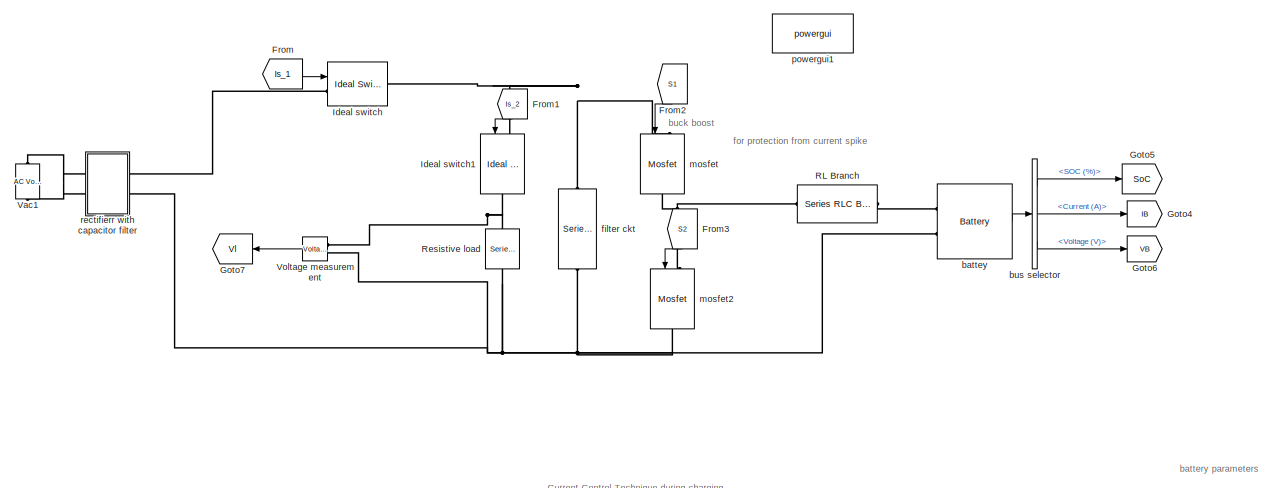
[diagram: root canvas - part 1/2, full width, top band]
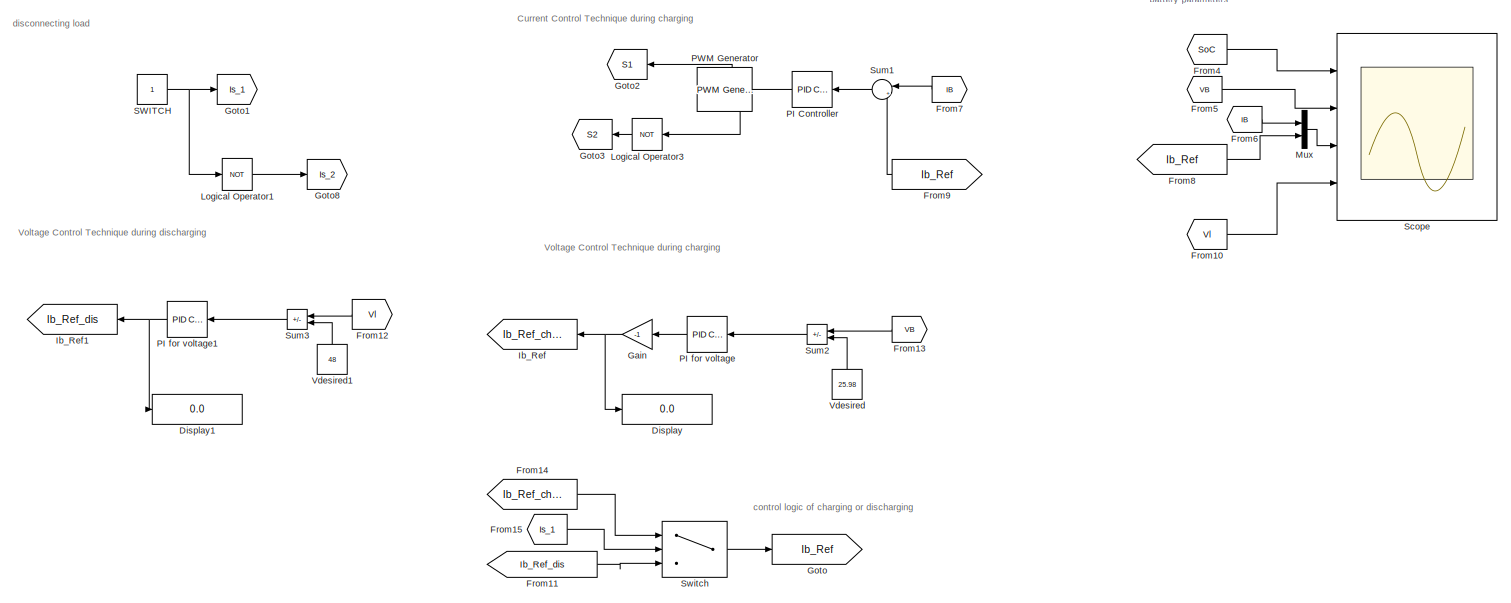
[diagram: root canvas - part 2/2, full width, bottom band]
MODEL slx_25568079fb22
KIND model
CONFIG AbsTol = auto
CONFIG EnableMultiTasking = off
CONFIG FixedStep = 5e-6
CONFIG MaxStep = auto
CONFIG MinStep = auto
CONFIG RelTol = 1e-3
CONFIG SampleTimeConstraint = Unconstrained
CONFIG SolverName = VariableStepAuto
CONFIG StartTime = 0.0
CONFIG StopTime = 20
BLOCK [Display] Display
  Decimation = 1
  Ports = [1]
BLOCK [Display] Display1
  Decimation = 1
  Ports = [1]
BLOCK [From] From
  GotoTag = Is_1
BLOCK [From] From1
  GotoTag = Is_2
  NameLocation = left
BLOCK [From] From10
  GotoTag = Vl
  NameLocation = top
BLOCK [From] From11
  GotoTag = Ib_Ref_dis
BLOCK [From] From12
  GotoTag = Vl
BLOCK [From] From13
  GotoTag = VB
  NameLocation = top
BLOCK [From] From14
  GotoTag = Ib_Ref_charg
BLOCK [From] From15
  GotoTag = Is_1
BLOCK [From] From2
  GotoTag = S1
  NameLocation = right
BLOCK [From] From3
  GotoTag = S2
  NameLocation = right
BLOCK [From] From4
  GotoTag = SoC
BLOCK [From] From5
  GotoTag = VB
BLOCK [From] From6
  GotoTag = IB
BLOCK [From] From7
  GotoTag = IB
  NameLocation = top
BLOCK [From] From8
  GotoTag = Ib_Ref
BLOCK [From] From9
  GotoTag = Ib_Ref
BLOCK [Gain] Gain
  Gain = -1
  NameLocation = top
BLOCK [Goto] Goto
  GotoTag = Ib_Ref
BLOCK [Goto] Goto1
  GotoTag = Is_1
BLOCK [Goto] Goto2
  GotoTag = S1
  NameLocation = top
BLOCK [Goto] Goto3
  GotoTag = S2
  NameLocation = top
BLOCK [Goto] Goto4
  GotoTag = IB
BLOCK [Goto] Goto5
  GotoTag = SoC
BLOCK [Goto] Goto6
  GotoTag = VB
BLOCK [Goto] Goto7
  GotoTag = Vl
  NameLocation = top
BLOCK [Goto] Goto8
  GotoTag = Is_2
BLOCK [Goto] Ib_Ref
  GotoTag = Ib_Ref_charg
  NameLocation = top
BLOCK [Goto] Ib_Ref1
  GotoTag = Ib_Ref_dis
  NameLocation = top
BLOCK [Reference] Ideal switch  REF=spsIdealSwitchLib/Ideal Switch
  Ports = [1, 0, 0, 0, 0, 1, 1]
  SourceBlock = spsIdealSwitchLib/Ideal Switch
  SourceProductBaseCode = PS
  SourceType = Ideal Switch
BLOCK [Reference] Ideal switch1  REF=spsIdealSwitchLib/Ideal Switch
  NameLocation = left
  Ports = [1, 0, 0, 0, 0, 1, 1]
  SourceBlock = spsIdealSwitchLib/Ideal Switch
  SourceProductBaseCode = PS
  SourceType = Ideal Switch
BLOCK [Logic] Logical Operator1
  AllPortsSameDT = off
  Operator = NOT
  OutDataTypeStr = boolean
  Ports = [1, 1]
BLOCK [Logic] Logical Operator3
  AllPortsSameDT = off
  NameLocation = top
  Operator = NOT
  OutDataTypeStr = boolean
  Ports = [1, 1]
BLOCK [Mux] Mux
  DisplayOption = bar
  Inputs = 2
  Ports = [2, 1]
BLOCK [Reference] PI Controller  REF=slpidlib/PID Controller
  NameLocation = top
  Ports = [1, 1]
  SourceBlock = slpidlib/PID Controller
  SourceProductBaseCode = SL
  SourceType = PID 1dof
BLOCK [Reference] PI for voltage  REF=slpidlib/PID Controller
  NameLocation = top
  Ports = [1, 1]
  SourceBlock = slpidlib/PID Controller
  SourceProductBaseCode = SL
  SourceType = PID 1dof
BLOCK [Reference] PI for voltage1  REF=slpidlib/PID Controller
  NameLocation = top
  Ports = [1, 1]
  SourceBlock = slpidlib/PID Controller
  SourceProductBaseCode = SL
  SourceType = PID 1dof
BLOCK [Reference] PWM Generator  REF=spsPWMGeneratorDCDCLib/PWM Generator
(DC-DC)
  NameLocation = top
  Ports = [1, 1]
  SourceBlock = spsPWMGeneratorDCDCLib/PWM Generator\n(DC-DC)
  SourceProductBaseCode = PS
  SourceType = PWM Generator (DC-DC)
BLOCK [Reference] RL Branch  REF=spsSeriesRLCBranchLib/Series RLC Branch
  Ports = [0, 0, 0, 0, 0, 1, 1]
  SourceBlock = spsSeriesRLCBranchLib/Series RLC Branch
  SourceProductBaseCode = PS
  SourceType = Series RLC Branch
BLOCK [Reference] Resistive load  REF=spsSeriesRLCBranchLib/Series RLC Branch
  NameLocation = left
  Ports = [0, 0, 0, 0, 0, 1, 1]
  SourceBlock = spsSeriesRLCBranchLib/Series RLC Branch
  SourceProductBaseCode = PS
  SourceType = Series RLC Branch
BLOCK [Constant] SWITCH
BLOCK [Scope] Scope
  Floating = off
  NumInputPorts = 4
  Ports = [4]
  ScopeSpecificationString = Simulink.scopes.TimeScopeBlockCfg('CurrentConfiguration', extmgr.ConfigurationSet(extmgr.Configuration('Core','General UI',true,'DisplayFullSourceName',true),extmgr.Configuration('Core','Source UI',true),extmgr.Configuration('Sources','WiredSimulink',true,'DataLoggingVariableName','ScopeData1'),extmgr.Configuration('Visuals','Time Domain',true,'SerializedDisplays',{struct('MinYLimReal','79.99244',...<+3842ch>
BLOCK [Sum] Sum1
  Inputs = |+-
  NameLocation = top
  Ports = [2, 1]
BLOCK [Sum] Sum2
  IconShape = rectangular
  Inputs = -+
  NameLocation = top
  Ports = [2, 1]
BLOCK [Sum] Sum3
  IconShape = rectangular
  Inputs = -+
  NameLocation = top
  Ports = [2, 1]
BLOCK [Switch] Switch
  Criteria = u2 > Threshold
  InputSameDT = off
  SaturateOnIntegerOverflow = off
BLOCK [Reference] Vac1  REF=spsACVoltageSourceLib/AC Voltage Source
  NameLocation = right
  Ports = [0, 0, 0, 0, 0, 1, 1]
  SourceBlock = spsACVoltageSourceLib/AC Voltage Source
  SourceProductBaseCode = PS
  SourceType = AC Voltage Source
BLOCK [Constant] Vdesired
  NameLocation = right
  Value = 25.98
BLOCK [Constant] Vdesired1
  NameLocation = right
  Value = 48
BLOCK [Reference] Voltage measurement  REF=spsVoltageMeasurementLib/Voltage Measurement
  NameLocation = top
  Ports = [0, 1, 0, 0, 0, 2]
  SourceBlock = spsVoltageMeasurementLib/Voltage Measurement
  SourceProductBaseCode = PS
  SourceType = Voltage Measurement
  UserDataPersistent = on
BLOCK [Reference] battey  REF=spsBatteryLib/Battery
  NameLocation = top
  Ports = [0, 1, 0, 0, 0, 2]
  SourceBlock = spsBatteryLib/Battery
  SourceProductBaseCode = PS
  SourceType = Battery
BLOCK [BusSelector] bus selector
  OutputSignals = SOC (%),Current (A),Voltage (V)
  Ports = [1, 3]
BLOCK [Reference] filter ckt  REF=spsSeriesRLCBranchLib/Series RLC Branch
  NameLocation = left
  Ports = [0, 0, 0, 0, 0, 1, 1]
  SourceBlock = spsSeriesRLCBranchLib/Series RLC Branch
  SourceProductBaseCode = PS
  SourceType = Series RLC Branch
BLOCK [Reference] mosfet  REF=spsMosfetLib/Mosfet
  NameLocation = left
  Ports = [1, 0, 0, 0, 0, 1, 1]
  SourceBlock = spsMosfetLib/Mosfet
  SourceProductBaseCode = PS
  SourceType = Mosfet
BLOCK [Reference] mosfet2  REF=spsMosfetLib/Mosfet
  NameLocation = left
  Ports = [1, 0, 0, 0, 0, 1, 1]
  SourceBlock = spsMosfetLib/Mosfet
  SourceProductBaseCode = PS
  SourceType = Mosfet
BLOCK [Reference] powergui1  REF=spspowerguiLib/powergui
  Ports = []
  Priority = 1
  SourceBlock = spspowerguiLib/powergui
  SourceProductBaseCode = PS
  SourceType = PSB option menu block
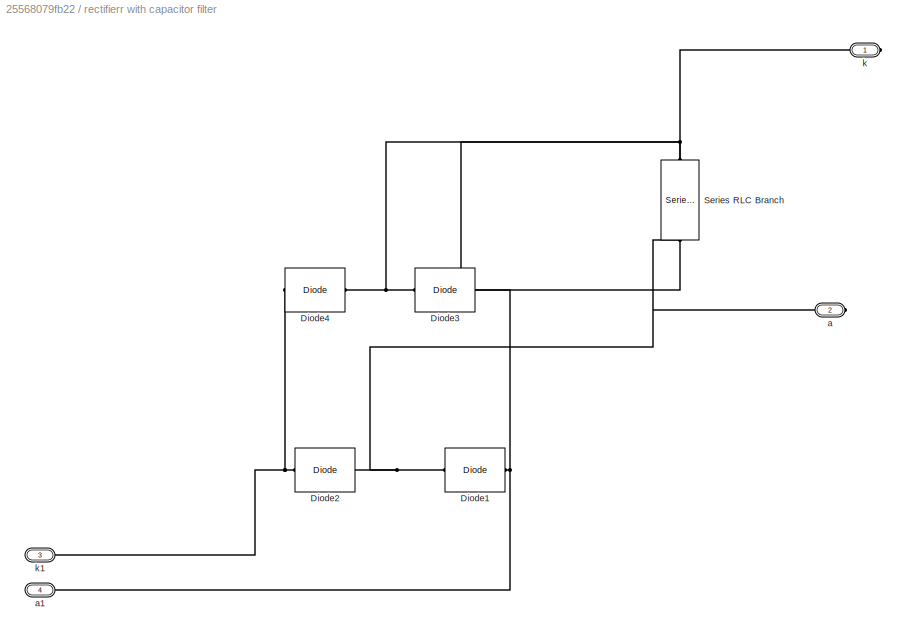
BLOCK [SubSystem] rectifierr with capacitor filter
  Ports = [0, 0, 0, 0, 0, 2, 2]
  RequestExecContextInheritance = off
BLOCK [Reference] rectifierr with capacitor filter/Diode1  REF=spsDiodeLib/Diode
  Ports = [0, 0, 0, 0, 0, 1, 1]
  SourceBlock = spsDiodeLib/Diode
  SourceProductBaseCode = PS
  SourceType = Diode
BLOCK [Reference] rectifierr with capacitor filter/Diode2  REF=spsDiodeLib/Diode
  NameLocation = top
  Ports = [0, 0, 0, 0, 0, 1, 1]
  SourceBlock = spsDiodeLib/Diode
  SourceProductBaseCode = PS
  SourceType = Diode
BLOCK [Reference] rectifierr with capacitor filter/Diode3  REF=spsDiodeLib/Diode
  NameLocation = top
  Ports = [0, 0, 0, 0, 0, 1, 1]
  SourceBlock = spsDiodeLib/Diode
  SourceProductBaseCode = PS
  SourceType = Diode
BLOCK [Reference] rectifierr with capacitor filter/Diode4  REF=spsDiodeLib/Diode
  Ports = [0, 0, 0, 0, 0, 1, 1]
  SourceBlock = spsDiodeLib/Diode
  SourceProductBaseCode = PS
  SourceType = Diode
BLOCK [Reference] rectifierr with capacitor filter/Series RLC Branch  REF=spsSeriesRLCBranchLib/Series RLC Branch
  NameLocation = left
  Ports = [0, 0, 0, 0, 0, 1, 1]
  SourceBlock = spsSeriesRLCBranchLib/Series RLC Branch
  SourceProductBaseCode = PS
  SourceType = Series RLC Branch
BLOCK [PMIOPort] rectifierr with capacitor filter/a
  Port = 2
  Side = Right
BLOCK [PMIOPort] rectifierr with capacitor filter/a1
  Port = 4
  Side = Left
BLOCK [PMIOPort] rectifierr with capacitor filter/k
  Side = Right
BLOCK [PMIOPort] rectifierr with capacitor filter/k1
  Port = 3
  Side = Left
ANNOTATION (root): buck boost
ANNOTATION (root): Current Control Technique during charging
ANNOTATION (root): Voltage Control Technique during charging
ANNOTATION (root): Voltage Control Technique during discharging
ANNOTATION (root): control logic of charging or discharging
ANNOTATION (root): disconnecting load
ANNOTATION (root): battery parameters
ANNOTATION (root): for protection from current spike
LINE From10:1 -> Scope:4
LINE From11:1 -> Switch:3
LINE From12:1 -> Sum3:1
LINE From13:1 -> Sum2:1
LINE From14:1 -> Switch:1
LINE From15:1 -> Switch:2
LINE From1:1 -> Ideal switch1:1
LINE From2:1 -> mosfet:1
LINE From3:1 -> mosfet2:1
LINE From4:1 -> Scope:1
LINE From5:1 -> Scope:2
LINE From6:1 -> Mux:1
LINE From7:1 -> Sum1:1
LINE From8:1 -> Mux:2
LINE From9:1 -> Sum1:2
LINE From:1 -> Ideal switch:1
NET Gain:1 -> Display:1, Ib_Ref:1
LINE Logical Operator1:1 -> Goto8:1
LINE Logical Operator3:1 -> Goto3:1
LINE Mux:1 -> Scope:3
LINE PI Controller:1 -> PWM Generator:1
NET PI for voltage1:1 -> Display1:1, Ib_Ref1:1
LINE PI for voltage:1 -> Gain:1
NET PWM Generator:1 -> Goto2:1, Logical Operator3:1
NET SWITCH:1 -> Goto1:1, Logical Operator1:1
LINE Sum1:1 -> PI Controller:1
LINE Sum2:1 -> PI for voltage:1
LINE Sum3:1 -> PI for voltage1:1
LINE Switch:1 -> Goto:1
LINE Vdesired1:1 -> Sum3:2
LINE Vdesired:1 -> Sum2:2
LINE Voltage measurement:1 -> Goto7:1
LINE battey:1 -> bus selector:1
LINE bus selector:1 -> Goto5:1
LINE bus selector:2 -> Goto4:1
LINE bus selector:3 -> Goto6:1
PNET net1: Ideal switch1:LConn1 -- Ideal switch:RConn1 -- filter ckt:LConn1 -- mosfet:LConn1
PNET net2: Ideal switch1:RConn1 -- Resistive load:LConn1 -- Voltage measurement:LConn1
PLINE Ideal switch:LConn1 -- rectifierr with capacitor filter:RConn1
PNET net3: RL Branch:LConn1 -- mosfet2:LConn1 -- mosfet:RConn1
PLINE RL Branch:RConn1 -- battey:LConn1
PNET net4: Resistive load:RConn1 -- Voltage measurement:LConn2 -- battey:LConn2 -- filter ckt:RConn1 -- mosfet2:RConn1 -- rectifierr with capacitor filter:RConn2
PLINE Vac1:LConn1 -- rectifierr with capacitor filter:LConn2
PLINE Vac1:RConn1 -- rectifierr with capacitor filter:LConn1
PNET net5: rectifierr with capacitor filter/Diode1:LConn1 -- rectifierr with capacitor filter/Diode2:LConn1 -- rectifierr with capacitor filter/Series RLC Branch:RConn1 -- rectifierr with capacitor filter/a:RConn1
PNET net6: rectifierr with capacitor filter/Diode1:RConn1 -- rectifierr with capacitor filter/Diode3:LConn1 -- rectifierr with capacitor filter/a1:RConn1
PNET net7: rectifierr with capacitor filter/Diode2:RConn1 -- rectifierr with capacitor filter/Diode4:LConn1 -- rectifierr with capacitor filter/k1:RConn1
PNET net8: rectifierr with capacitor filter/Diode3:RConn1 -- rectifierr with capacitor filter/Diode4:RConn1 -- rectifierr with capacitor filter/Series RLC Branch:LConn1 -- rectifierr with capacitor filter/k:RConn1
note: NET lines group one-source signal fan-out (src -> all destinations, sorted); 1:1 wires keep LINE; PNET lines group multi-terminal physical nets as a canonical sorted terminal list (undirected conserving connections); 2-terminal nets keep the pairwise PLINE form
